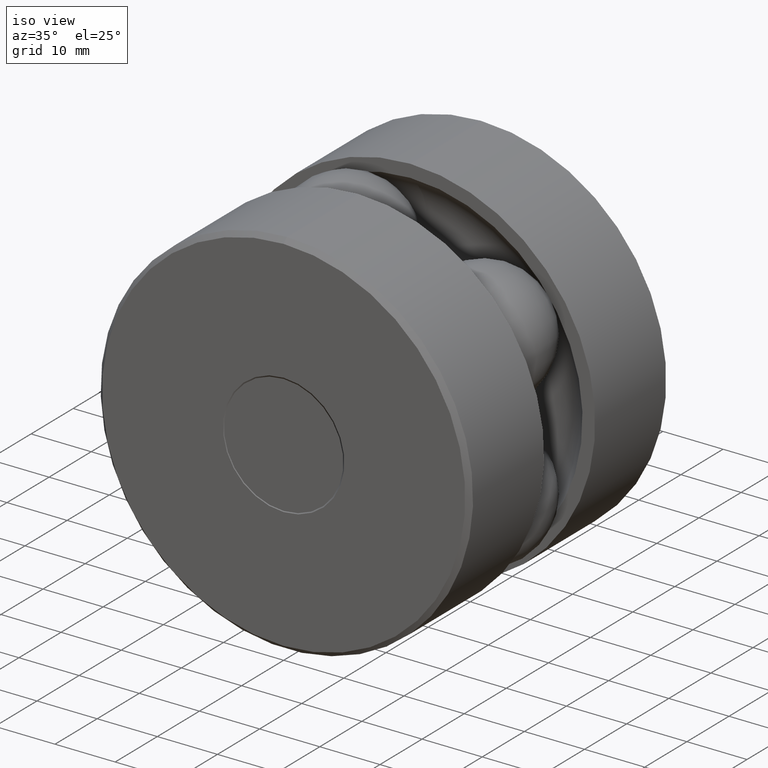
[diagram: clean part render]
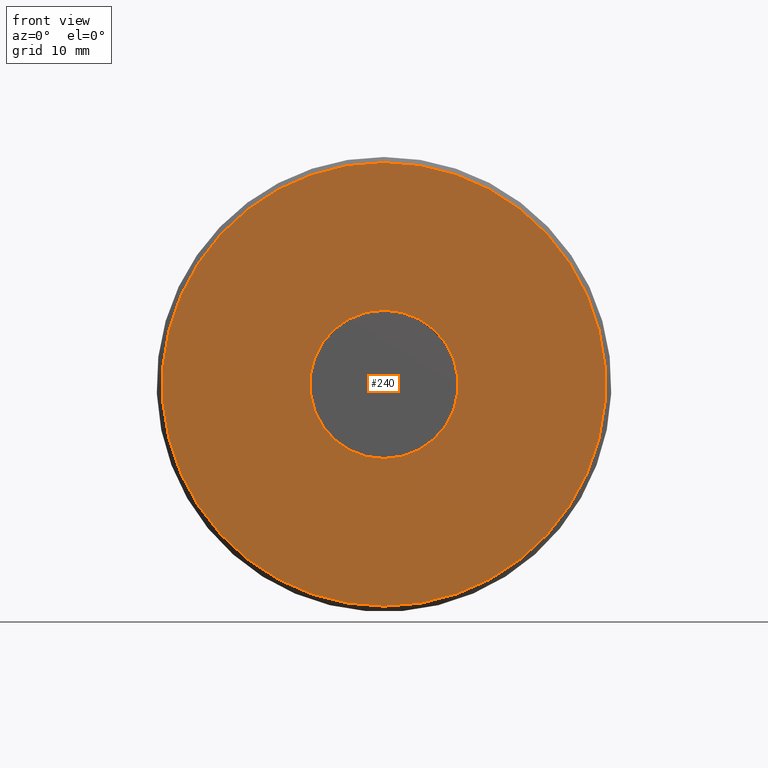
[diagram: tour spotlight — one face highlighted and labeled with its STEP entity id]
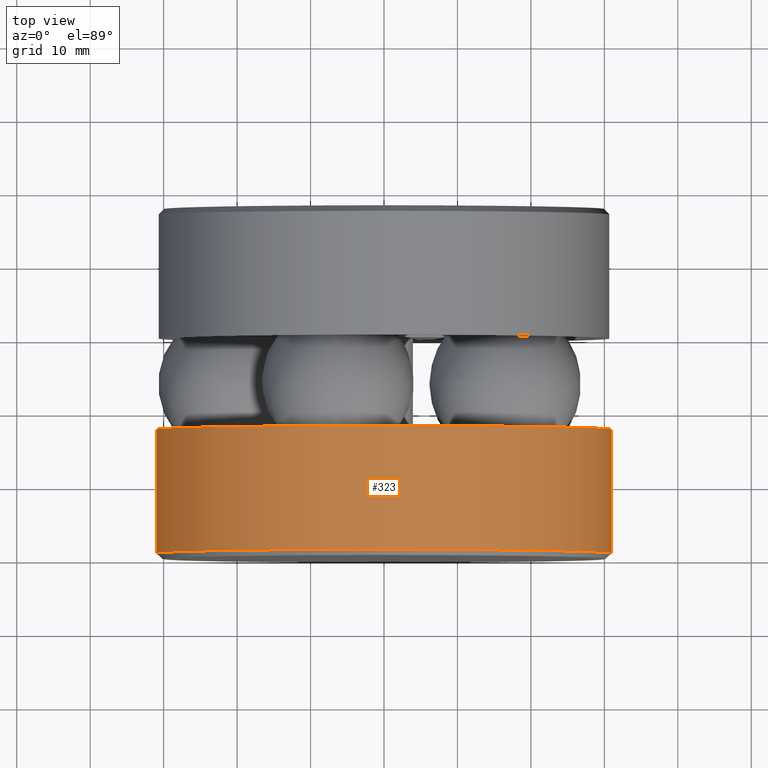
[diagram: tour spotlight — one face highlighted and labeled with its STEP entity id]
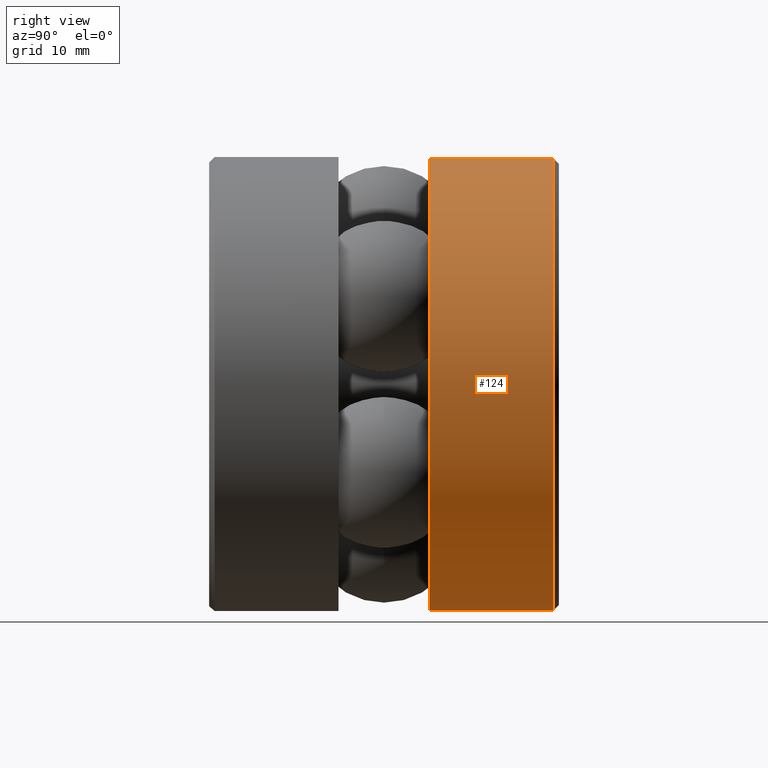
[diagram: tour spotlight — one face highlighted and labeled with its STEP entity id]
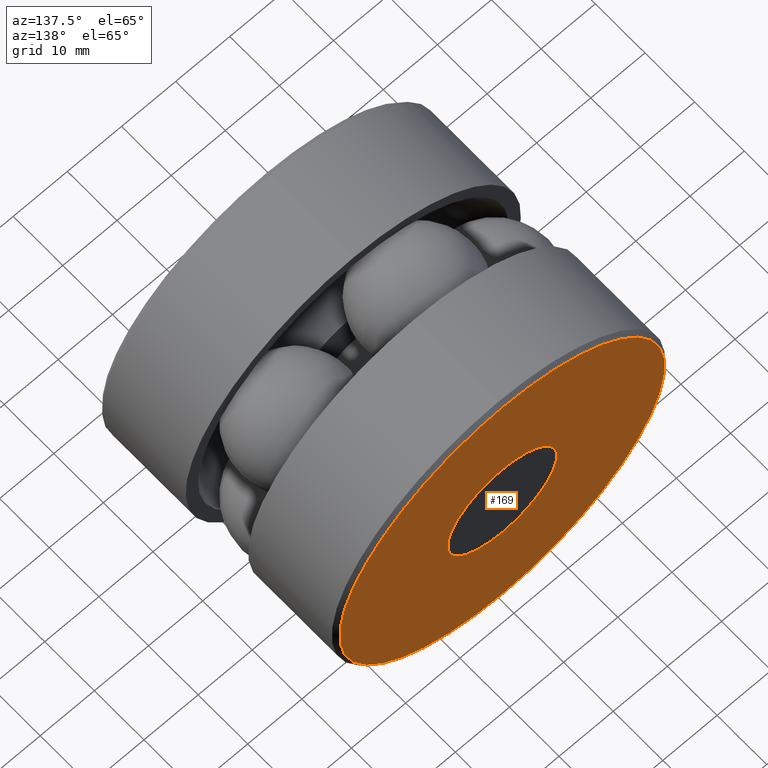
[diagram: tour spotlight — one face highlighted and labeled with its STEP entity id]
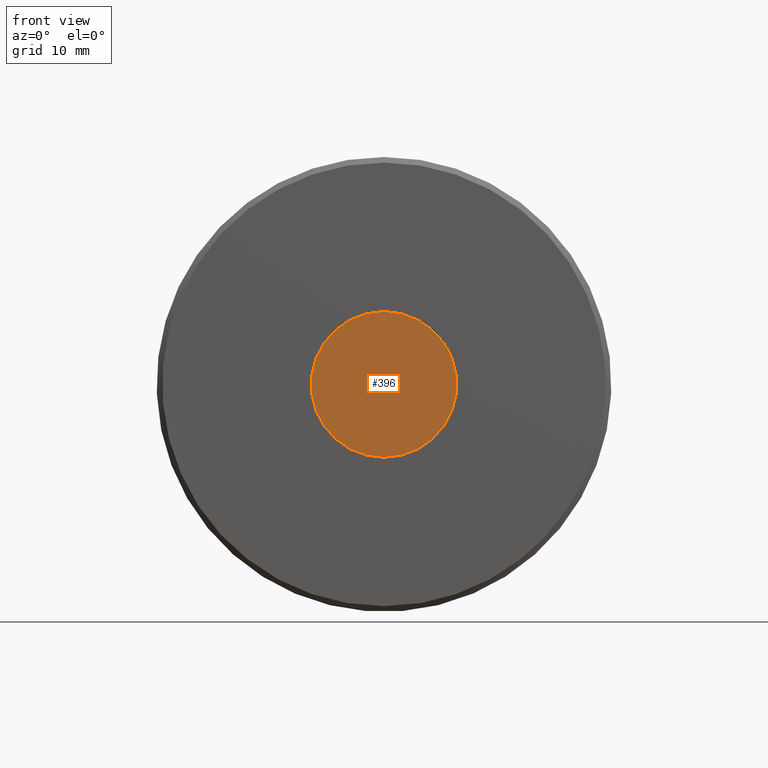
[diagram: tour spotlight — one face highlighted and labeled with its STEP entity id]
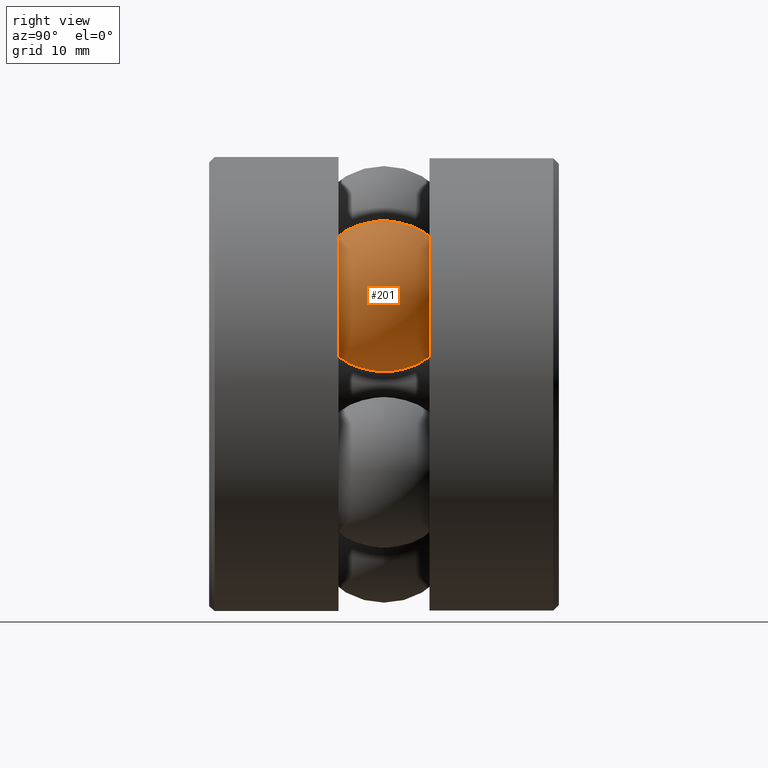
[diagram: tour spotlight — one face highlighted and labeled with its STEP entity id]
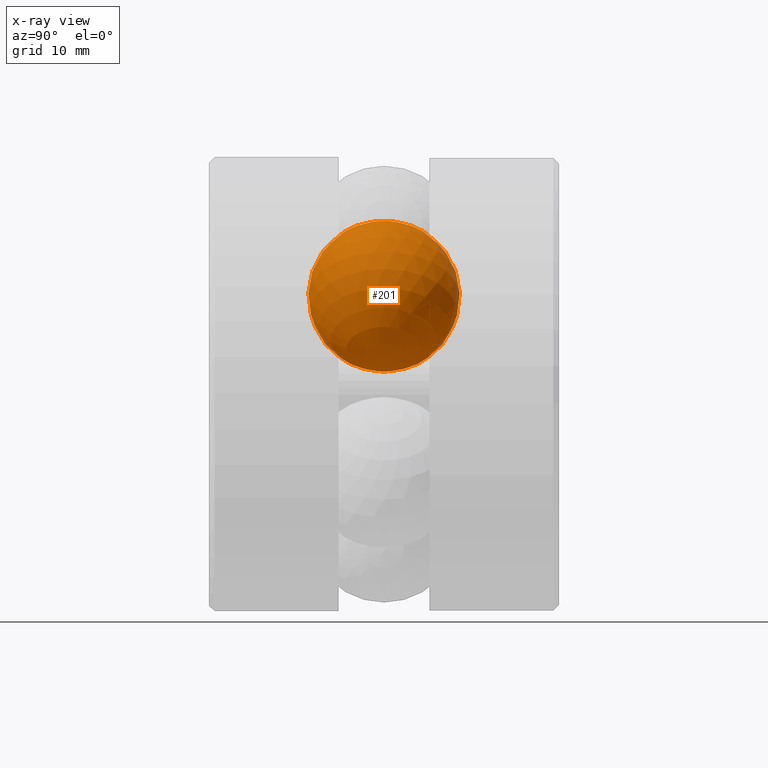
[diagram: x-ray of the same camera — body ghosted, this tour face saturated]
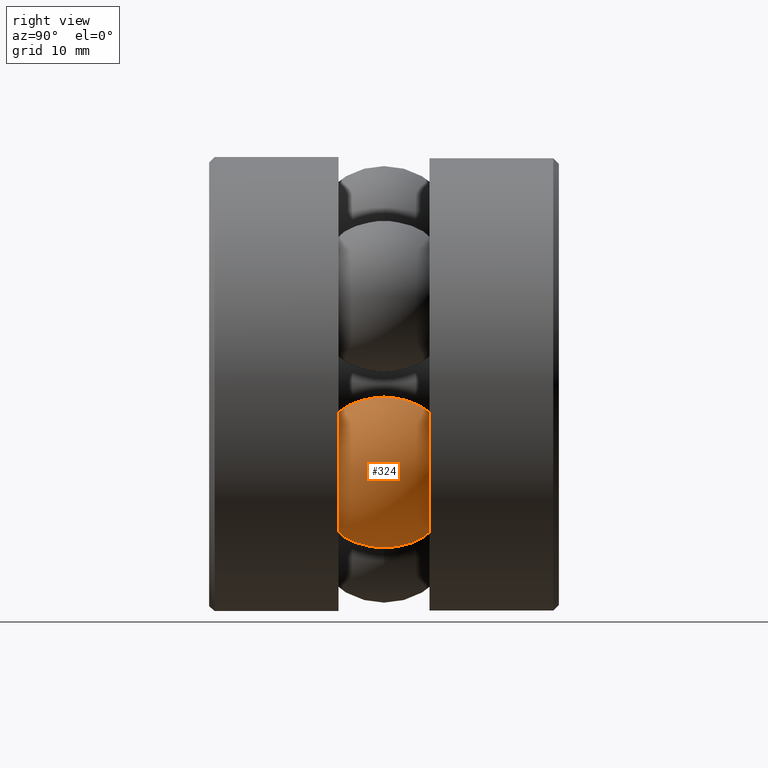
[diagram: tour spotlight — one face highlighted and labeled with its STEP entity id]
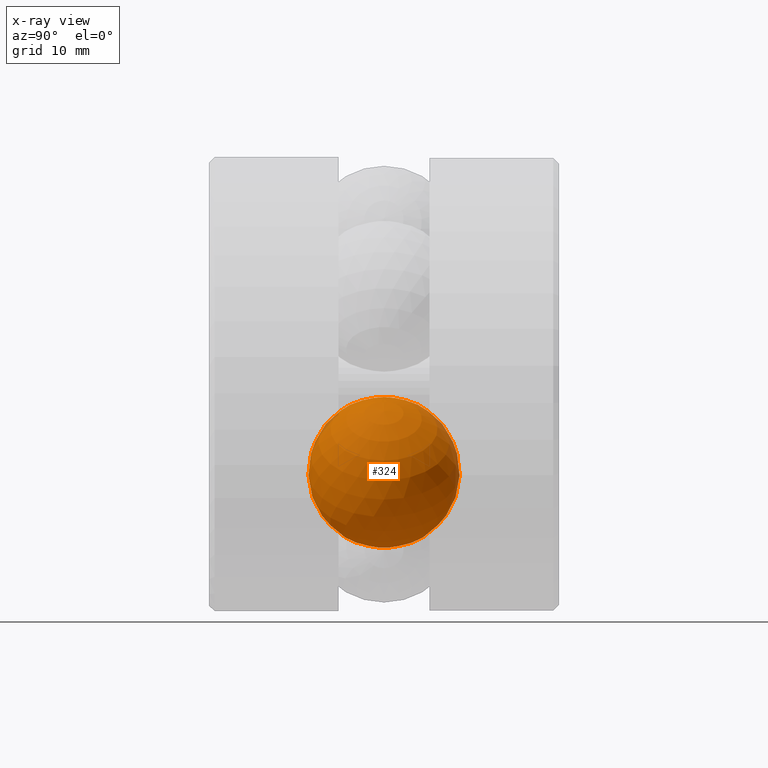
[diagram: x-ray of the same camera — body ghosted, this tour face saturated]
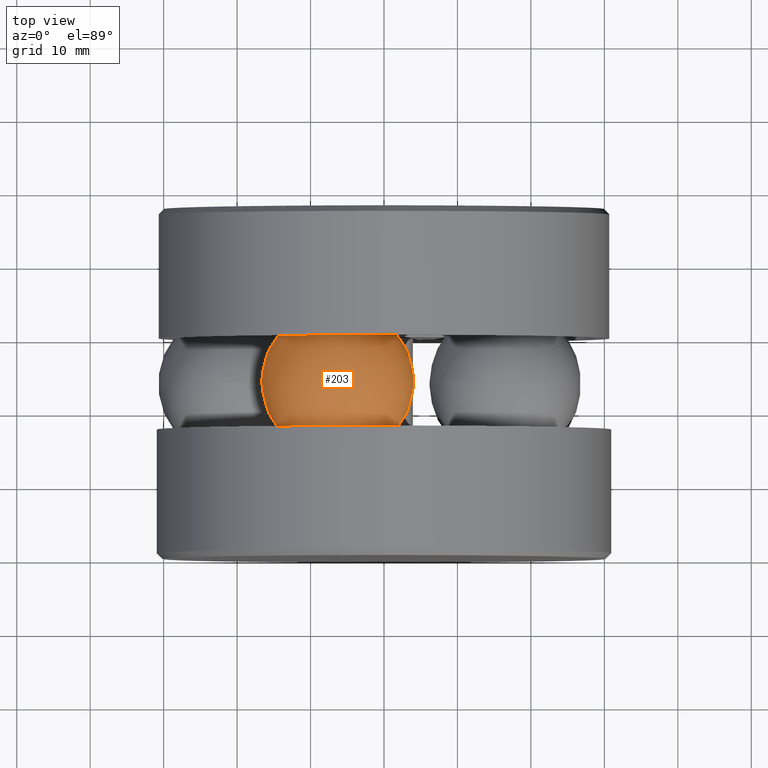
[diagram: tour spotlight — one face highlighted and labeled with its STEP entity id]
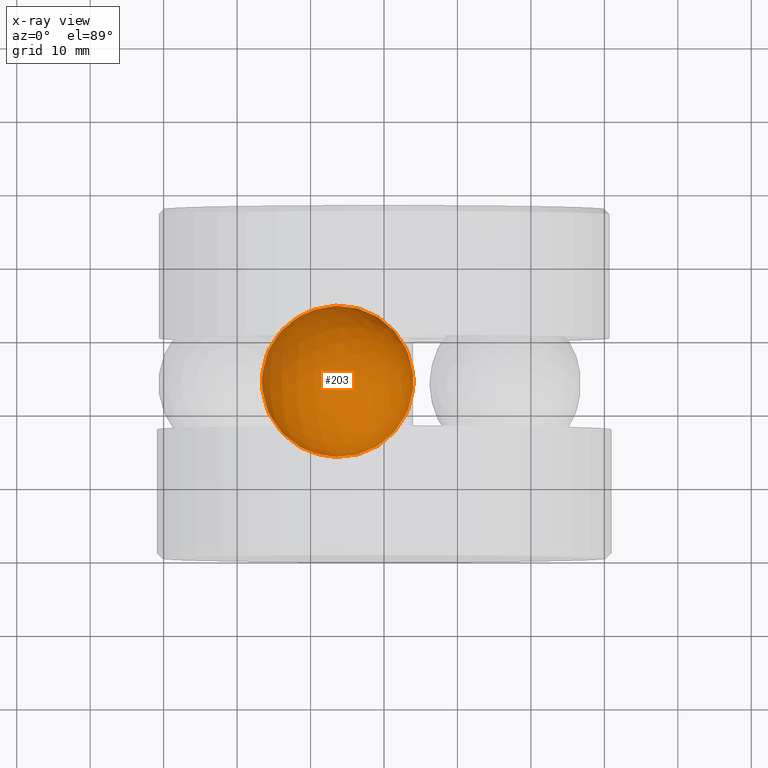
[diagram: x-ray of the same camera — body ghosted, this tour face saturated]
A machine part: a face-by-face anatomy tour. The part has 26 B-rep faces; the first image is the clean iso view, then the 8 largest visible faces are spotlighted one at a time (largest first), each with its STEP entity span.

Face 1 — front view, entity #240. In plain terms, the highlighted planar face has unit normal (0, -1, 0).
Definition (entity closure, byte-faithful):
#7 = EDGE_LOOP ( 'NONE', ( #245 ) ) ;
#117 = CARTESIAN_POINT ( 'NONE',  ( 0.0000000000000000000, -2.210274490284117400E-018, 0.3974460678118629200 ) ) ;
#210 = CARTESIAN_POINT ( 'NONE',  ( -0.3974460678118629200, -9.670517702963630200E-017, 0.0000000000000000000 ) ) ;
#214 = DIRECTION ( 'NONE',  ( 0.0000000000000000000, -0.0000000000000000000, -1.000000000000000000 ) ) ;
#224 = VERTEX_POINT ( 'NONE', #117 ) ;
#231 = CIRCLE ( 'NONE', #517, 0.3974460678118629200 ) ;
#240 = ADVANCED_FACE ( 'NONE', ( #270, #373 ), #371, .T. ) ;
#244 = CIRCLE ( 'NONE', #463, 1.188750000000000000 ) ;
#245 = ORIENTED_EDGE ( 'NONE', *, *, #299, .F. ) ;
#254 = EDGE_LOOP ( 'NONE', ( #467 ) ) ;
#257 = CARTESIAN_POINT ( 'NONE',  ( 0.0000000000000000000, -1.912000795689885100E-016, 0.0000000000000000000 ) ) ;
#258 = CARTESIAN_POINT ( 'NONE',  ( 0.0000000000000000000, -2.210274490284117400E-018, 0.0000000000000000000 ) ) ;
#270 = FACE_BOUND ( 'NONE', #254, .T. ) ;
#299 = EDGE_CURVE ( 'NONE', #329, #329, #244, .T. ) ;
#300 = DIRECTION ( 'NONE',  ( 0.0000000000000000000, 0.0000000000000000000, 1.000000000000000000 ) ) ;
#304 = DIRECTION ( 'NONE',  ( 0.0000000000000000000, 0.0000000000000000000, 1.000000000000000000 ) ) ;
#327 = EDGE_CURVE ( 'NONE', #224, #224, #231, .T. ) ;
#329 = VERTEX_POINT ( 'NONE', #352 ) ;
#331 = AXIS2_PLACEMENT_3D ( 'NONE', #210, #452, #214 ) ;
#352 = CARTESIAN_POINT ( 'NONE',  ( 0.0000000000000000000, -1.912000795689885100E-016, 1.188750000000000000 ) ) ;
#371 = PLANE ( 'NONE',  #331 ) ;
#373 = FACE_OUTER_BOUND ( 'NONE', #7, .T. ) ;
#452 = DIRECTION ( 'NONE',  ( 0.0000000000000000000, -1.000000000000000000, 0.0000000000000000000 ) ) ;
#463 = AXIS2_PLACEMENT_3D ( 'NONE', #257, #540, #300 ) ;
#467 = ORIENTED_EDGE ( 'NONE', *, *, #327, .T. ) ;
#517 = AXIS2_PLACEMENT_3D ( 'NONE', #258, #542, #304 ) ;
#540 = DIRECTION ( 'NONE',  ( -0.0000000000000000000, 1.000000000000000000, -0.0000000000000000000 ) ) ;
#542 = DIRECTION ( 'NONE',  ( -0.0000000000000000000, 1.000000000000000000, -0.0000000000000000000 ) ) ;

Face 2 — top view, entity #323. In plain terms, the highlighted cylindrical surface (bore or boss wall) has radius 30.9562 mm, axis along (-0, 1, -0).
Definition (entity closure, byte-faithful):
#2 = VERTEX_POINT ( 'NONE', #316 ) ;
#10 = AXIS2_PLACEMENT_3D ( 'NONE', #218, #494, #458 ) ;
#16 = EDGE_LOOP ( 'NONE', ( #209 ) ) ;
#52 = CIRCLE ( 'NONE', #306, 1.218750000000000000 ) ;
#62 = EDGE_LOOP ( 'NONE', ( #445 ) ) ;
#78 = CARTESIAN_POINT ( 'NONE',  ( 0.0000000000000000000, 0.03000000000000006800, 1.218750000000000000 ) ) ;
#128 = CYLINDRICAL_SURFACE ( 'NONE', #10, 1.218750000000000000 ) ;
#140 = FACE_OUTER_BOUND ( 'NONE', #62, .T. ) ;
#183 = DIRECTION ( 'NONE',  ( -0.0000000000000000000, 1.000000000000000000, -0.0000000000000000000 ) ) ;
#209 = ORIENTED_EDGE ( 'NONE', *, *, #273, .T. ) ;
#218 = CARTESIAN_POINT ( 'NONE',  ( 0.0000000000000000000, 0.0000000000000000000, 0.0000000000000000000 ) ) ;
#246 = EDGE_CURVE ( 'NONE', #2, #2, #52, .T. ) ;
#255 = CARTESIAN_POINT ( 'NONE',  ( 0.0000000000000000000, 0.03000000000000006800, 0.0000000000000000000 ) ) ;
#273 = EDGE_CURVE ( 'NONE', #437, #437, #490, .T. ) ;
#298 = DIRECTION ( 'NONE',  ( 0.0000000000000000000, 0.0000000000000000000, 1.000000000000000000 ) ) ;
#306 = AXIS2_PLACEMENT_3D ( 'NONE', #414, #183, #456 ) ;
#316 = CARTESIAN_POINT ( 'NONE',  ( 0.0000000000000000000, 0.6937499999999999800, 1.218750000000000000 ) ) ;
#323 = ADVANCED_FACE ( 'NONE', ( #455, #140 ), #128, .T. ) ;
#384 = AXIS2_PLACEMENT_3D ( 'NONE', #255, #536, #298 ) ;
#414 = CARTESIAN_POINT ( 'NONE',  ( 0.0000000000000000000, 0.6937499999999999800, 0.0000000000000000000 ) ) ;
#437 = VERTEX_POINT ( 'NONE', #78 ) ;
#445 = ORIENTED_EDGE ( 'NONE', *, *, #246, .F. ) ;
#455 = FACE_OUTER_BOUND ( 'NONE', #16, .T. ) ;
#456 = DIRECTION ( 'NONE',  ( 0.0000000000000000000, 0.0000000000000000000, 1.000000000000000000 ) ) ;
#458 = DIRECTION ( 'NONE',  ( 0.0000000000000000000, 0.0000000000000000000, 1.000000000000000000 ) ) ;
#490 = CIRCLE ( 'NONE', #384, 1.218750000000000000 ) ;
#494 = DIRECTION ( 'NONE',  ( -0.0000000000000000000, 1.000000000000000000, -0.0000000000000000000 ) ) ;
#536 = DIRECTION ( 'NONE',  ( -0.0000000000000000000, 1.000000000000000000, -0.0000000000000000000 ) ) ;

Face 3 — right view, entity #124. In plain terms, the highlighted cylindrical surface (bore or boss wall) has radius 30.7784 mm, axis along (-0, 1, -0).
Definition (entity closure, byte-faithful):
#5 = FACE_OUTER_BOUND ( 'NONE', #17, .T. ) ;
#17 = EDGE_LOOP ( 'NONE', ( #182 ) ) ;
#43 = ORIENTED_EDGE ( 'NONE', *, *, #186, .T. ) ;
#48 = DIRECTION ( 'NONE',  ( -0.0000000000000000000, 1.000000000000000000, -0.0000000000000000000 ) ) ;
#50 = DIRECTION ( 'NONE',  ( -0.0000000000000000000, 1.000000000000000000, -0.0000000000000000000 ) ) ;
#66 = EDGE_LOOP ( 'NONE', ( #43 ) ) ;
#70 = CIRCLE ( 'NONE', #176, 1.211749999999999900 ) ;
#120 = AXIS2_PLACEMENT_3D ( 'NONE', #292, #48, #332 ) ;
#124 = ADVANCED_FACE ( 'NONE', ( #425, #5 ), #202, .T. ) ;
#176 = AXIS2_PLACEMENT_3D ( 'NONE', #295, #50, #333 ) ;
#182 = ORIENTED_EDGE ( 'NONE', *, *, #207, .F. ) ;
#186 = EDGE_CURVE ( 'NONE', #342, #342, #283, .T. ) ;
#202 = CYLINDRICAL_SURFACE ( 'NONE', #526, 1.211749999999999900 ) ;
#207 = EDGE_CURVE ( 'NONE', #237, #237, #70, .T. ) ;
#237 = VERTEX_POINT ( 'NONE', #274 ) ;
#263 = DIRECTION ( 'NONE',  ( 0.0000000000000000000, 0.0000000000000000000, 1.000000000000000000 ) ) ;
#274 = CARTESIAN_POINT ( 'NONE',  ( 0.0000000000000000000, 1.844999999999999300, 1.211749999999999900 ) ) ;
#280 = DIRECTION ( 'NONE',  ( -0.0000000000000000000, 1.000000000000000000, -0.0000000000000000000 ) ) ;
#283 = CIRCLE ( 'NONE', #120, 1.211749999999999900 ) ;
#292 = CARTESIAN_POINT ( 'NONE',  ( 0.0000000000000000000, 1.181249999999999900, 0.0000000000000000000 ) ) ;
#295 = CARTESIAN_POINT ( 'NONE',  ( 0.0000000000000000000, 1.844999999999999300, 0.0000000000000000000 ) ) ;
#332 = DIRECTION ( 'NONE',  ( 0.0000000000000000000, 0.0000000000000000000, 1.000000000000000000 ) ) ;
#333 = DIRECTION ( 'NONE',  ( 0.0000000000000000000, 0.0000000000000000000, 1.000000000000000000 ) ) ;
#339 = CARTESIAN_POINT ( 'NONE',  ( 0.0000000000000000000, 0.0000000000000000000, 0.0000000000000000000 ) ) ;
#342 = VERTEX_POINT ( 'NONE', #507 ) ;
#425 = FACE_OUTER_BOUND ( 'NONE', #66, .T. ) ;
#507 = CARTESIAN_POINT ( 'NONE',  ( 0.0000000000000000000, 1.181249999999999900, 1.211749999999999900 ) ) ;
#526 = AXIS2_PLACEMENT_3D ( 'NONE', #339, #280, #263 ) ;

Face 4 — auxiliary view, entity #169. In plain terms, the highlighted planar face has unit normal (-0, 1, 0).
Definition (entity closure, byte-faithful):
#21 = EDGE_LOOP ( 'NONE', ( #406 ) ) ;
#22 = CARTESIAN_POINT ( 'NONE',  ( 0.0000000000000000000, 1.874999999999999800, 1.181750000000000100 ) ) ;
#28 = CIRCLE ( 'NONE', #340, 0.3974460678118633100 ) ;
#47 = DIRECTION ( 'NONE',  ( -0.0000000000000000000, 1.000000000000000000, -0.0000000000000000000 ) ) ;
#61 = DIRECTION ( 'NONE',  ( 0.0000000000000000000, 0.0000000000000000000, 1.000000000000000000 ) ) ;
#77 = CARTESIAN_POINT ( 'NONE',  ( 0.0000000000000000000, 1.875000000000000000, 0.3974460678118633100 ) ) ;
#79 = EDGE_CURVE ( 'NONE', #461, #461, #28, .T. ) ;
#90 = FACE_BOUND ( 'NONE', #391, .T. ) ;
#132 = VERTEX_POINT ( 'NONE', #22 ) ;
#136 = CARTESIAN_POINT ( 'NONE',  ( 0.0000000000000000000, 1.874999999999999800, 0.0000000000000000000 ) ) ;
#149 = AXIS2_PLACEMENT_3D ( 'NONE', #369, #407, #177 ) ;
#169 = ADVANCED_FACE ( 'NONE', ( #308, #90 ), #370, .T. ) ;
#177 = DIRECTION ( 'NONE',  ( 0.0000000000000000000, 0.0000000000000000000, 1.000000000000000000 ) ) ;
#181 = DIRECTION ( 'NONE',  ( 0.0000000000000000000, 0.0000000000000000000, 1.000000000000000000 ) ) ;
#219 = ORIENTED_EDGE ( 'NONE', *, *, #79, .F. ) ;
#235 = EDGE_CURVE ( 'NONE', #132, #132, #385, .T. ) ;
#249 = AXIS2_PLACEMENT_3D ( 'NONE', #136, #413, #181 ) ;
#308 = FACE_OUTER_BOUND ( 'NONE', #21, .T. ) ;
#318 = CARTESIAN_POINT ( 'NONE',  ( 0.0000000000000000000, 1.875000000000000000, 0.0000000000000000000 ) ) ;
#340 = AXIS2_PLACEMENT_3D ( 'NONE', #318, #47, #61 ) ;
#369 = CARTESIAN_POINT ( 'NONE',  ( -0.3974460678118633100, 1.875000000000000000, 0.0000000000000000000 ) ) ;
#370 = PLANE ( 'NONE',  #149 ) ;
#385 = CIRCLE ( 'NONE', #249, 1.181750000000000100 ) ;
#391 = EDGE_LOOP ( 'NONE', ( #219 ) ) ;
#406 = ORIENTED_EDGE ( 'NONE', *, *, #235, .T. ) ;
#407 = DIRECTION ( 'NONE',  ( -0.0000000000000000000, 1.000000000000000000, 0.0000000000000000000 ) ) ;
#413 = DIRECTION ( 'NONE',  ( -0.0000000000000000000, 1.000000000000000000, -0.0000000000000000000 ) ) ;
#461 = VERTEX_POINT ( 'NONE', #77 ) ;

Face 5 — front view, entity #396. In plain terms, the highlighted planar face has unit normal (0, -1, 0).
Definition (entity closure, byte-faithful):
#13 = CARTESIAN_POINT ( 'NONE',  ( 0.0000000000000000000, 0.0000000000000000000, 0.0000000000000000000 ) ) ;
#53 = ORIENTED_EDGE ( 'NONE', *, *, #484, .F. ) ;
#55 = EDGE_LOOP ( 'NONE', ( #53 ) ) ;
#63 = PLANE ( 'NONE',  #213 ) ;
#74 = DIRECTION ( 'NONE',  ( 0.0000000000000000000, 0.0000000000000000000, 1.000000000000000000 ) ) ;
#109 = VERTEX_POINT ( 'NONE', #234 ) ;
#188 = DIRECTION ( 'NONE',  ( 0.0000000000000000000, -0.0000000000000000000, -1.000000000000000000 ) ) ;
#205 = FACE_OUTER_BOUND ( 'NONE', #55, .T. ) ;
#213 = AXIS2_PLACEMENT_3D ( 'NONE', #341, #422, #188 ) ;
#234 = CARTESIAN_POINT ( 'NONE',  ( 0.0000000000000000000, 0.0000000000000000000, 0.3903749999999974200 ) ) ;
#310 = DIRECTION ( 'NONE',  ( -0.0000000000000000000, 1.000000000000000000, -0.0000000000000000000 ) ) ;
#341 = CARTESIAN_POINT ( 'NONE',  ( -0.3903749999999974200, 0.0000000000000000000, 0.0000000000000000000 ) ) ;
#379 = CIRCLE ( 'NONE', #482, 0.3903749999999974200 ) ;
#396 = ADVANCED_FACE ( 'NONE', ( #205 ), #63, .T. ) ;
#422 = DIRECTION ( 'NONE',  ( 0.0000000000000000000, -1.000000000000000000, 0.0000000000000000000 ) ) ;
#482 = AXIS2_PLACEMENT_3D ( 'NONE', #13, #310, #74 ) ;
#484 = EDGE_CURVE ( 'NONE', #109, #109, #379, .T. ) ;

Face 6 — right view, entity #201. An x-ray twin of the same camera follows (body ghosted, this face saturated) — the face is partly hidden behind the body. In plain terms, the highlighted spherical surface has radius 10.3188 mm.
Definition (entity closure, byte-faithful):
#97 = DIRECTION ( 'NONE',  ( -0.8090169943749506700, 0.0000000000000000000, -0.5877852522924684700 ) ) ;
#134 = CARTESIAN_POINT ( 'NONE',  ( 0.6500451549802728200, 0.9375000000000000000, 0.4722854502169983600 ) ) ;
#200 = AXIS2_PLACEMENT_3D ( 'NONE', #134, #530, #97 ) ;
#201 = ADVANCED_FACE ( 'NONE', ( ), #479, .T. ) ;
#479 = SPHERICAL_SURFACE ( 'NONE', #200, 0.4062500000000000600 ) ;
#530 = DIRECTION ( 'NONE',  ( -0.5877852522924685900, 0.0000000000000000000, 0.8090169943749507800 ) ) ;

Face 7 — right view, entity #324. An x-ray twin of the same camera follows (body ghosted, this face saturated) — the face is partly hidden behind the body. In plain terms, the highlighted spherical surface has radius 10.3188 mm.
Definition (entity closure, byte-faithful):
#142 = DIRECTION ( 'NONE',  ( -0.8090169943749422300, 0.0000000000000000000, 0.5877852522924802400 ) ) ;
#184 = CARTESIAN_POINT ( 'NONE',  ( 0.6500451549802659400, 0.9375000000000000000, -0.4722854502170077400 ) ) ;
#324 = ADVANCED_FACE ( 'NONE', ( ), #538, .T. ) ;
#378 = DIRECTION ( 'NONE',  ( 0.5877852522924802400, -0.0000000000000000000, 0.8090169943749422300 ) ) ;
#409 = AXIS2_PLACEMENT_3D ( 'NONE', #184, #378, #142 ) ;
#538 = SPHERICAL_SURFACE ( 'NONE', #409, 0.4062500000000000600 ) ;

Face 8 — top view, entity #203. An x-ray twin of the same camera follows (body ghosted, this face saturated) — the face is partly hidden behind the body. In plain terms, the highlighted spherical surface has radius 10.3188 mm.
Definition (entity closure, byte-faithful):
#179 = DIRECTION ( 'NONE',  ( 0.3090169943749447300, 0.0000000000000000000, -0.9510565162951544200 ) ) ;
#191 = SPHERICAL_SURFACE ( 'NONE', #225, 0.4062500000000000600 ) ;
#203 = ADVANCED_FACE ( 'NONE', ( ), #191, .T. ) ;
#225 = AXIS2_PLACEMENT_3D ( 'NONE', #250, #412, #179 ) ;
#250 = CARTESIAN_POINT ( 'NONE',  ( -0.2482951549802680800, 0.9375000000000000000, 0.7641739108431565600 ) ) ;
#412 = DIRECTION ( 'NONE',  ( -0.9510565162951544200, 0.0000000000000000000, -0.3090169943749447300 ) ) ;